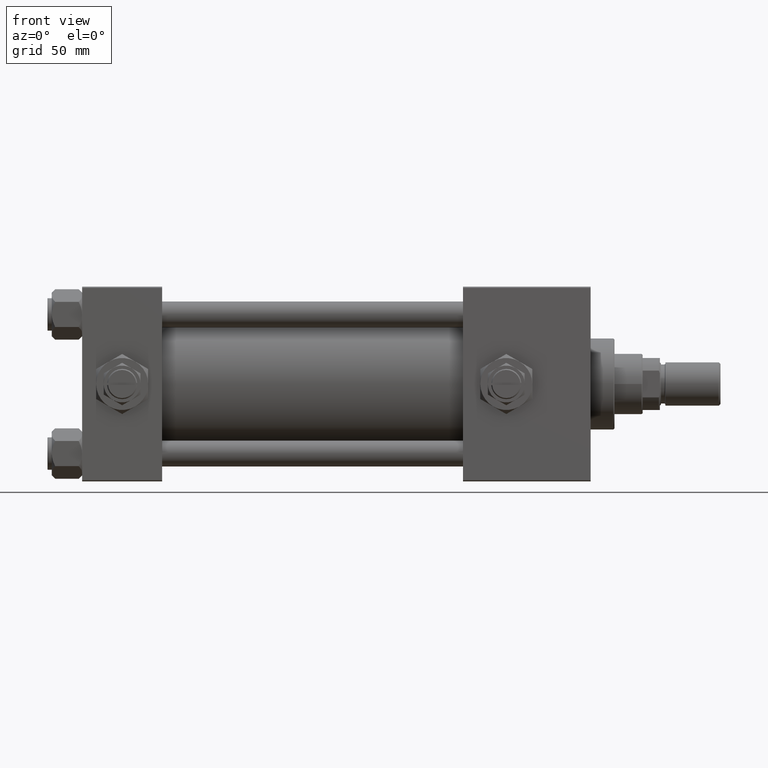
[diagram: clean part render]
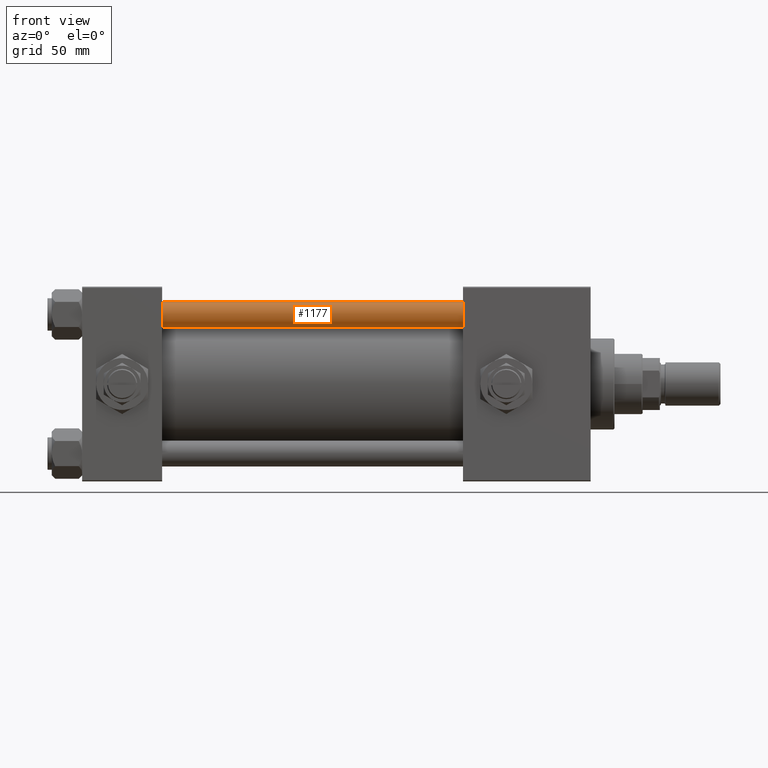
[diagram: same view with one face highlighted and labeled with its STEP entity id]
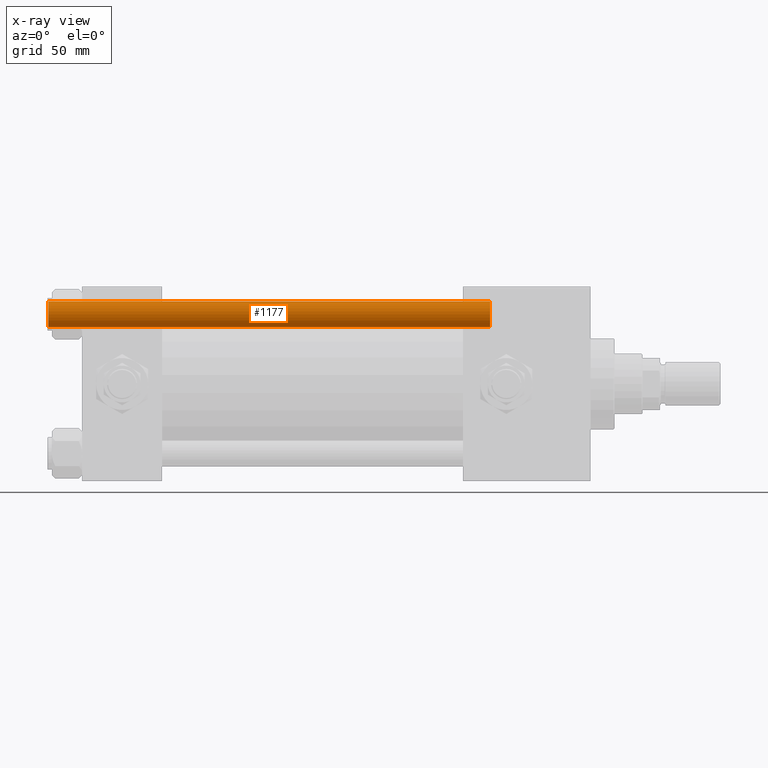
[diagram: x-ray of the same camera — body ghosted, the highlighted face saturated]
A machine part, front view. The second image highlights one B-rep face of the part: STEP entity #1177.
The next image is the same camera in x-ray: the body ghosted, the highlighted face saturated — about 0% of this face is hidden behind the body in this view.
In plain terms, the highlighted cylindrical surface (edge-blend (fillet) strip) has radius 6 mm, axis along (1, 0, -0).
Its self-contained STEP definition (entity closure, byte-faithful):
#103 = CARTESIAN_POINT ( 'NONE',  ( 6.000000000000000888, 7.347880794884119736E-16, 0.5000000000001114664 ) ) ;
#1177 = ADVANCED_FACE ( 'NONE', ( #30854 ), #11063, .T. ) ;
#1343 = EDGE_CURVE ( 'NONE', #37098, #23096, #40453, .T. ) ;
#3559 = CARTESIAN_POINT ( 'NONE',  ( -6.000000000000000888, 0.000000000000000000, 205.0000000000000000 ) ) ;
#3825 = DIRECTION ( 'NONE',  ( -0.000000000000000000, -0.000000000000000000, -1.000000000000000000 ) ) ;
#4179 = DIRECTION ( 'NONE',  ( 0.000000000000000000, 0.000000000000000000, -1.000000000000000000 ) ) ;
#4870 = EDGE_LOOP ( 'NONE', ( #50758, #46696, #47161, #5395 ) ) ;
#5395 = ORIENTED_EDGE ( 'NONE', *, *, #1343, .F. ) ;
#7918 = CARTESIAN_POINT ( 'NONE',  ( 0.000000000000000000, 0.000000000000000000, 204.5000000000000568 ) ) ;
#9420 = CARTESIAN_POINT ( 'NONE',  ( 6.000000000000000888, 7.347880794884119736E-16, 205.0000000000000000 ) ) ;
#11063 = CYLINDRICAL_SURFACE ( 'NONE', #15689, 6.000000000000000888 ) ;
#12812 = CARTESIAN_POINT ( 'NONE',  ( 6.000000000000000888, 7.347880794884119736E-16, 204.5000000000000568 ) ) ;
#14527 = CIRCLE ( 'NONE', #34202, 6.000000000000000888 ) ;
#15689 = AXIS2_PLACEMENT_3D ( 'NONE', #51990, #39409, #23109 ) ;
#23096 = VERTEX_POINT ( 'NONE', #24619 ) ;
#23109 = DIRECTION ( 'NONE',  ( -1.000000000000000000, 0.000000000000000000, 0.000000000000000000 ) ) ;
#23553 = CIRCLE ( 'NONE', #33831, 6.000000000000000888 ) ;
#24619 = CARTESIAN_POINT ( 'NONE',  ( -6.000000000000000888, 0.000000000000000000, 0.5000000000001114664 ) ) ;
#27242 = EDGE_CURVE ( 'NONE', #37098, #27699, #14527, .T. ) ;
#27699 = VERTEX_POINT ( 'NONE', #12812 ) ;
#29006 = CARTESIAN_POINT ( 'NONE',  ( -6.000000000000000888, 0.000000000000000000, 204.5000000000000568 ) ) ;
#30854 = FACE_OUTER_BOUND ( 'NONE', #4870, .T. ) ;
#33742 = DIRECTION ( 'NONE',  ( -0.000000000000000000, -0.000000000000000000, -1.000000000000000000 ) ) ;
#33831 = AXIS2_PLACEMENT_3D ( 'NONE', #45914, #46435, #41893 ) ;
#33921 = EDGE_CURVE ( 'NONE', #47150, #23096, #23553, .T. ) ;
#34202 = AXIS2_PLACEMENT_3D ( 'NONE', #7918, #4179, #47782 ) ;
#34407 = EDGE_CURVE ( 'NONE', #27699, #47150, #41495, .T. ) ;
#37098 = VERTEX_POINT ( 'NONE', #29006 ) ;
#39409 = DIRECTION ( 'NONE',  ( -0.000000000000000000, -0.000000000000000000, -1.000000000000000000 ) ) ;
#40453 = LINE ( 'NONE', #3559, #47294 ) ;
#41495 = LINE ( 'NONE', #9420, #50937 ) ;
#41893 = DIRECTION ( 'NONE',  ( 1.000000000000000000, 0.000000000000000000, 0.000000000000000000 ) ) ;
#45914 = CARTESIAN_POINT ( 'NONE',  ( 0.000000000000000000, 0.000000000000000000, 0.5000000000001114664 ) ) ;
#46435 = DIRECTION ( 'NONE',  ( -0.000000000000000000, -0.000000000000000000, 1.000000000000000000 ) ) ;
#46696 = ORIENTED_EDGE ( 'NONE', *, *, #34407, .T. ) ;
#47150 = VERTEX_POINT ( 'NONE', #103 ) ;
#47161 = ORIENTED_EDGE ( 'NONE', *, *, #33921, .T. ) ;
#47294 = VECTOR ( 'NONE', #3825, 1000.000000000000000 ) ;
#47782 = DIRECTION ( 'NONE',  ( 1.000000000000000000, 0.000000000000000000, 0.000000000000000000 ) ) ;
#50758 = ORIENTED_EDGE ( 'NONE', *, *, #27242, .T. ) ;
#50937 = VECTOR ( 'NONE', #33742, 1000.000000000000000 ) ;
#51990 = CARTESIAN_POINT ( 'NONE',  ( 0.000000000000000000, 0.000000000000000000, 205.0000000000000000 ) ) ;